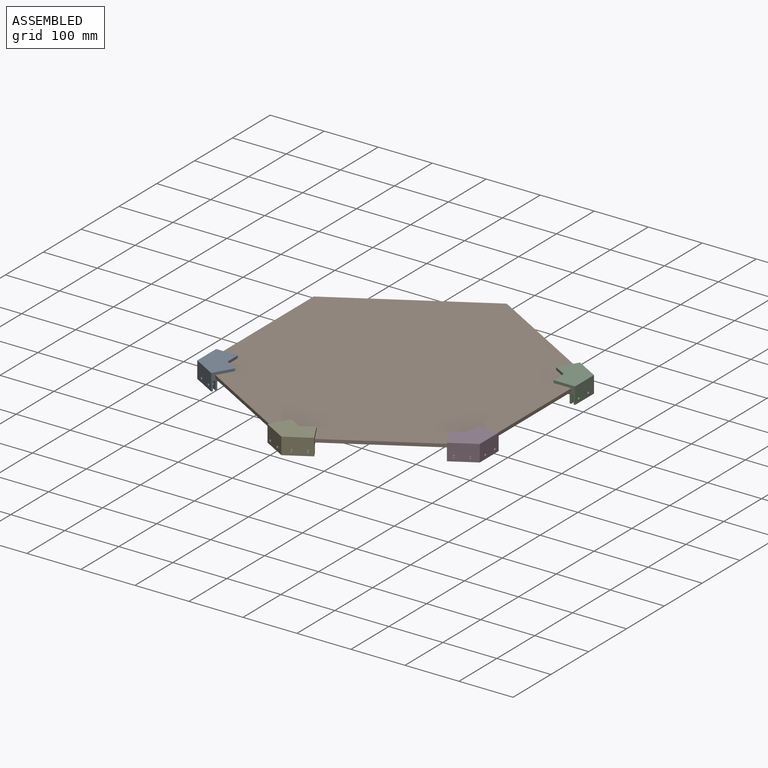
[diagram: assembled view]
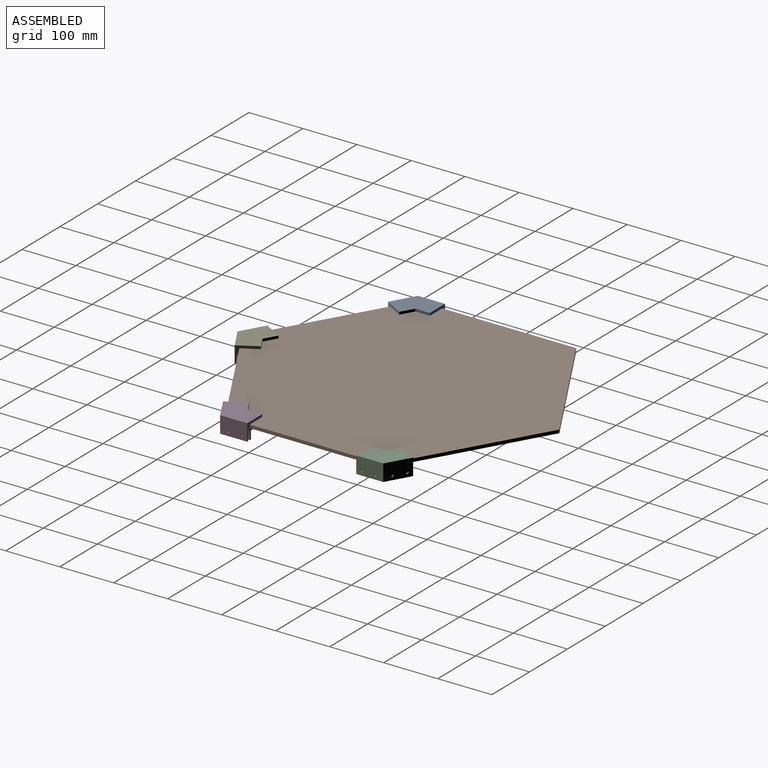
[diagram: assembled view, second angle]
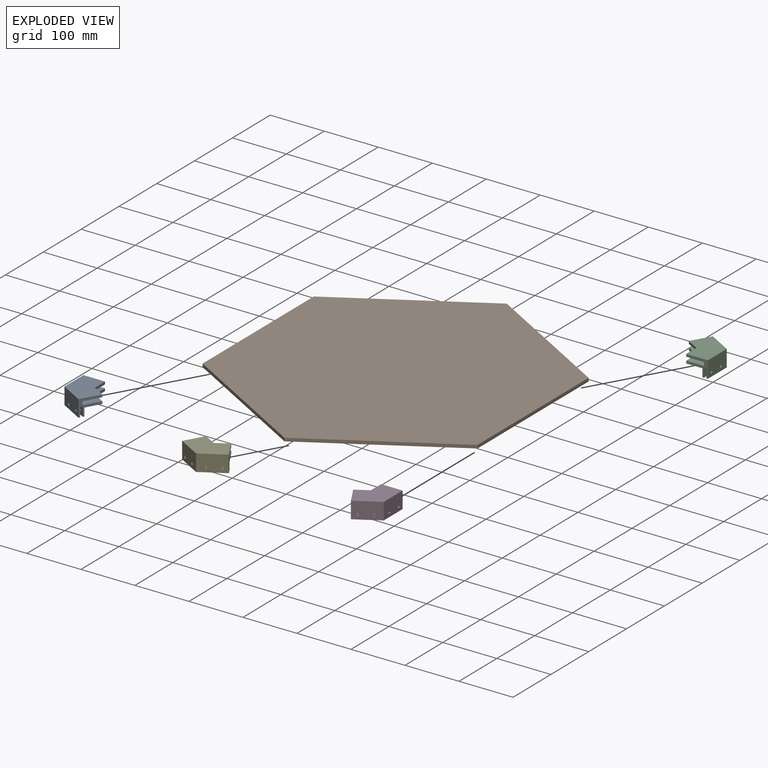
[diagram: exploded view]
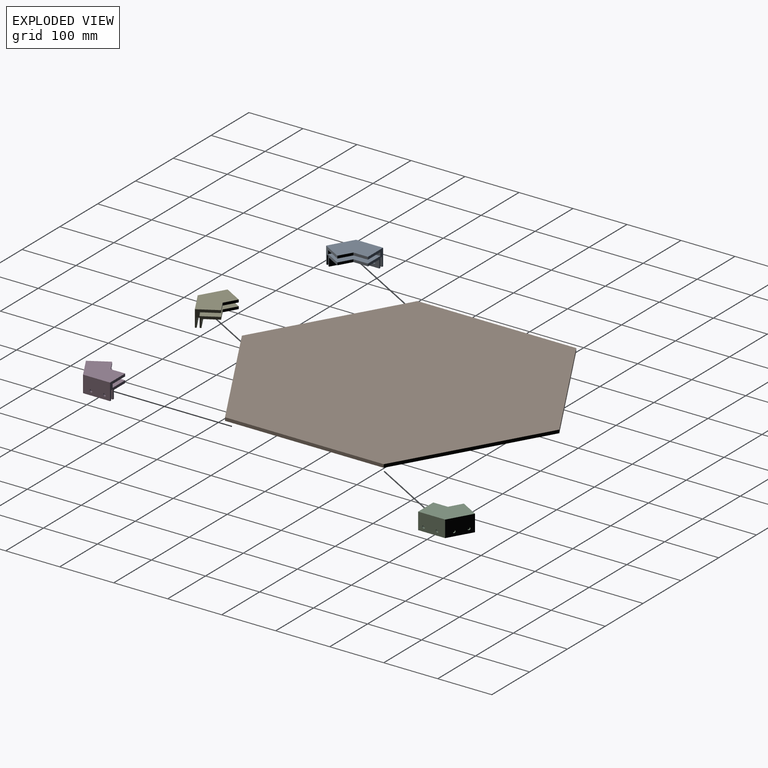
[diagram: exploded view, second angle]
ASSEMBLY  parts=5 mates=4
PART A: 31 faces, bbox 63.3x75x31 mm
  f0: plane 75x44.68mm, normal (0,0,-1), area 270.6mm2, adj f3,f4,f5,f6,f18,f21
  f1: plane 23.3x13.45mm, normal (0.5,0.87,0), area 126.5mm2, adj f2,f6,f10,f14
  f2: plane 26.91x4.7mm, normal (1,0,0), area 126.5mm2, adj f1,f3,f10,f14
  f3: plane 40x31mm, normal (0,1,0), area 499mm2, adj f0,f2,f4,f8,f9,f10,f11,f13
  f4: plane 50x31mm, normal (-1,0,0), area 1510.7mm2, adj f0,f3,f5,f9,f29,f30
  f5: plane 43.3x31mm, normal (-0.5,-0.87,0), area 1510.7mm2, adj f0,f4,f6,f9,f23,f24
  f6: plane 34.64x31mm, normal (0.87,-0.5,0), area 499mm2, adj f0,f1,f5,f7,f9,f10,f12,f13
  f7: plane 23.3x13.45mm, normal (0.5,0.87,0), area 129.1mm2, adj f6,f8,f9,f13
  f8: plane 26.91x4.8mm, normal (1,0,0), area 129.1mm2, adj f3,f7,f9,f13
  f9: plane 75x63.3mm, normal (0,0,1), area 3076.2mm2, adj f3,f4,f5,f6,f7,f8
  f10: plane 66.34x53.3mm, normal (0,0,-1), area 2134mm2, adj f1,f2,f3,f6,f15,f16
  f11: plane 45.96x6.5mm, normal (1,0,0), area 298.7mm2, adj f3,f12,f13,f14
  f12: plane 39.8x22.98mm, normal (0.5,0.87,0), area 298.7mm2, adj f6,f11,f13,f14
  f13: plane 68.94x56.3mm, normal (0,0,-1), area 2404.5mm2, adj f3,f6,f7,f8,f11,f12
  f14: plane 68.94x56.3mm, normal (0,0,1), area 2404.5mm2, adj f1,f2,f3,f6,f11,f12
  f15: plane 38.3x22.11mm, normal (0.5,0.87,0), area 624.1mm2, adj f6,f10,f16,f17,f25,f26
  f16: plane 44.23x15mm, normal (1,0,0), area 624.1mm2, adj f3,f10,f15,f17,f27,f28
  f17: plane 68.72x41.05mm, normal (0,0,-1), area 247.6mm2, adj f3,f6,f15,f16,f19,f20
  f18: plane 48.41x17mm, normal (1,0,0), area 783.7mm2, adj f0,f3,f21,f22,f29,f30
  f19: plane 45.81x17mm, normal (-1,0,0), area 739.6mm2, adj f3,f17,f20,f22,f27,f28
  f20: plane 39.68x22.91mm, normal (-0.5,-0.87,0), area 739.6mm2, adj f6,f17,f19,f22,f25,f26
  f21: plane 41.93x24.21mm, normal (0.5,0.87,0), area 783.7mm2, adj f0,f6,f18,f22,f23,f24
  f22: plane 72.62x44.18mm, normal (0,0,-1), area 424mm2, adj f3,f6,f18,f19,f20,f21
  f23: cylinder r=2.5mm len=5.71mm, axis (-0.5,-0.87,0), area 43.2mm2, adj f5,f21
  f24: cylinder r=2.5mm len=5.71mm, axis (-0.5,-0.87,0), area 43.2mm2, adj f5,f21
  f25: cylinder r=2.5mm len=5.71mm, axis (-0.5,-0.87,0), area 43.2mm2, adj f15,f20
  f26: cylinder r=2.5mm len=5.71mm, axis (-0.5,-0.87,0), area 43.2mm2, adj f15,f20
  f27: cylinder r=2.5mm len=5mm, axis (-1,0,0), area 43.2mm2, adj f16,f19
  f28: cylinder r=2.5mm len=5mm, axis (-1,0,0), area 43.2mm2, adj f16,f19
  f29: cylinder r=2.5mm len=5mm, axis (-1,0,0), area 43.2mm2, adj f4,f18
  f30: cylinder r=2.5mm len=5mm, axis (-1,0,0), area 43.2mm2, adj f4,f18
PART B: 8 faces, bbox 509x587.7x6 mm
  f0: plane 293.87x6mm, normal (1,0,0), area 1763.2mm2, adj f1,f5,f6,f7
  f1: plane 254.5x146.94mm, normal (0.5,0.87,0), area 1763.2mm2, adj f0,f2,f6,f7
  f2: plane 254.5x146.94mm, normal (-0.5,0.87,0), area 1763.2mm2, adj f1,f3,f6,f7
  f3: plane 293.87x6mm, normal (-1,0,0), area 1763.2mm2, adj f2,f4,f6,f7
  f4: plane 254.5x146.94mm, normal (-0.5,-0.87,0), area 1763.2mm2, adj f3,f5,f6,f7
  f5: plane 254.5x146.94mm, normal (0.5,-0.87,0), area 1763.2mm2, adj f0,f4,f6,f7
  f6: plane 587.74x509mm, normal (0,0,1), area 224370.7mm2, adj f0,f1,f2,f3,f4,f5
  f7: plane 587.74x509mm, normal (0,0,-1), area 224370.7mm2, adj f0,f1,f2,f3,f4,f5
PART C: same geometry as A
PART D: same geometry as A
PART E: same geometry as A
PLACE A t=(-435.73,-84.92,191.02)mm
PLACE B t=(-571.35,-108.83,196.02)mm
PLACE C rot(axis=(0,0,-1),180deg) t=(-706.98,-132.74,191.02)mm
PLACE D rot(axis=(0,0,1),120deg) t=(-659.87,-3.33,191.02)mm
PLACE E rot(axis=(0,0,1),60deg) t=(-524.25,20.58,191.02)mm
MATE planar D.f11 <-> B.f5  axis (-0.5,0.87,0) through (-316.85,-255.76,198.97)mm
MATE planar E.f11 <-> B.f4  axis (0.5,0.87,0) through (-571.35,-402.7,198.97)mm
MATE planar B.f4 <-> A.f12  axis (-0.5,-0.87,0) through (-825.85,-255.76,199.02)mm
MATE planar C.f12 <-> B.f1  axis (-0.5,-0.87,0) through (-316.85,38.11,198.97)mm
